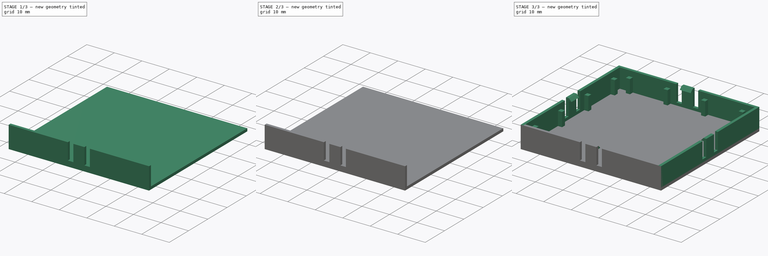
[diagram: build sequence overview — one tinted view per stage of 3, left to right]
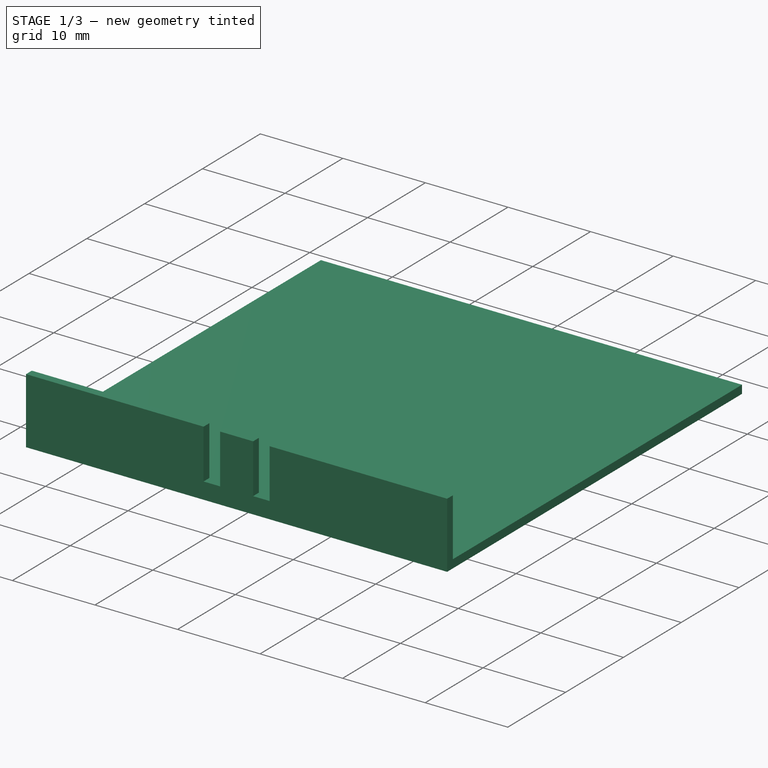
[diagram: stage 1 of 3 — iso view after this stage's code; geometry added in this stage tinted green]
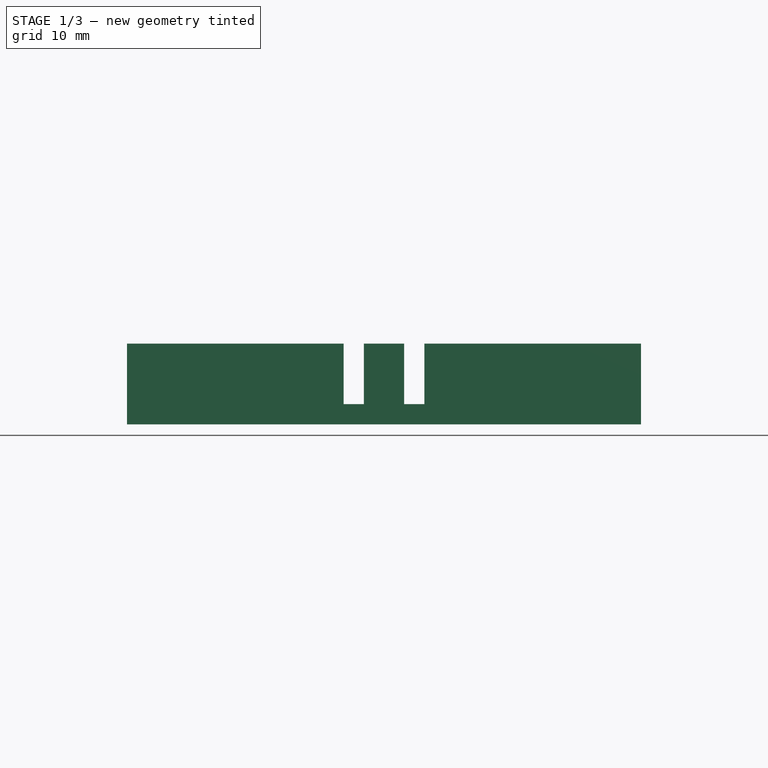
[diagram: stage 1 of 3 — front view after this stage's code; geometry added in this stage tinted green]
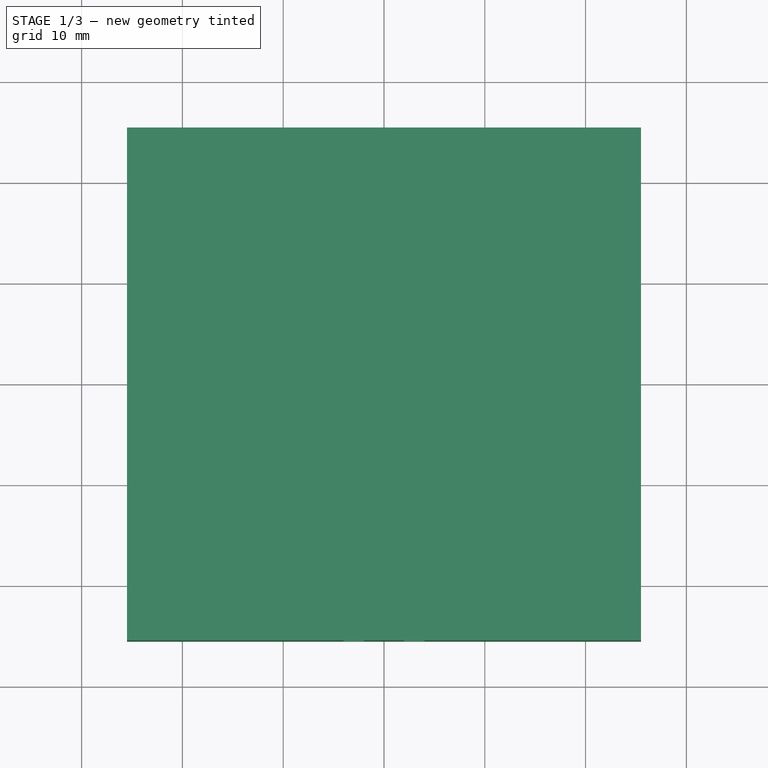
[diagram: stage 1 of 3 — top view after this stage's code; geometry added in this stage tinted green]
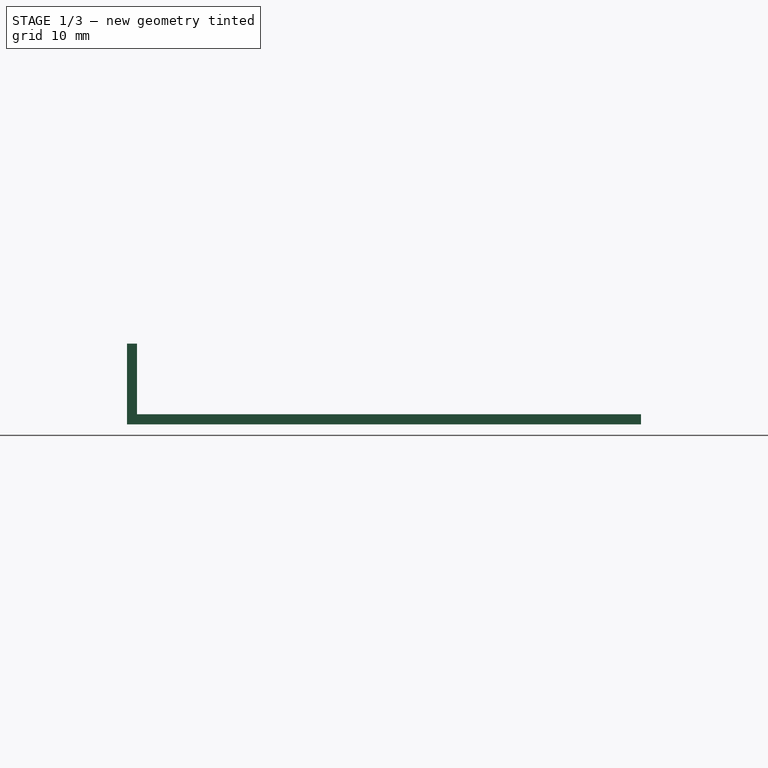
[diagram: stage 1 of 3 — right view after this stage's code; geometry added in this stage tinted green]
FCSTD DOCUMENT  (FreeCAD 0.20R29177 (Git))
Label: shield
License: All rights reserved
LicenseURL: http://en.wikipedia.org/wiki/All_rights_reserved
objects: Sketcher::SketchObject×4, PartDesign::Pad×4, PartDesign::LinearPattern×1, PartDesign::Body×1, Part::FeaturePython×1
note: 15 computed .brp shape members not serialized (recipe doc carries the construction recipe); baked Part::Feature solids carry a one-line shape summary decoded from their .brp

FEATURE [Sketcher::SketchObject] Sketch
  FullyConstrained = true
  MapMode = 5
  Support = -> [XY_Plane]
  sketch-geometry (4):
    g0: LineSegment StartX=-25.5 StartY=25.5 StartZ=0 EndX=25.5 EndY=25.5 EndZ=0
    g1: LineSegment StartX=25.5 StartY=25.5 StartZ=0 EndX=25.5 EndY=-25.5 EndZ=0
    g2: LineSegment StartX=25.5 StartY=-25.5 StartZ=0 EndX=-25.5 EndY=-25.5 EndZ=0
    g3: LineSegment StartX=-25.5 StartY=-25.5 StartZ=0 EndX=-25.5 EndY=25.5 EndZ=0
  constraints (10):
    c: Coincident(g0,g1)
    c: Coincident(g1,g2)
    c: Coincident(g2,g3)
    c: Coincident(g3,g0)
    c: Horizontal(g2)
    c: Vertical(g3)
    c: Symmetric(g0,g1,g-1)
    c: Symmetric(g0,g0,g-2)
    c: Distance(g0) = 51
    c: Distance(g1) = 51
FEATURE [PartDesign::Pad] Pad
  Direction = (0,0,1)
  Length = 1
  Length2 = 10
  Profile = -> Sketch
  ReferenceAxis = -> Sketch [N_Axis]
  Type = 0
FEATURE [Sketcher::SketchObject] Sketch001
  ExternalGeometry = -> [Pad]
  FullyConstrained = false
  MapMode = 5
  Placement = pos=(0,-25.5,0) rot=(1,0,0;1.5708rad)
  Support = -> [Pad]
  sketch-geometry (14):
    g0: LineSegment StartX=-33.7633 StartY=8 StartZ=0 EndX=31.5007 EndY=8 EndZ=0
    g1: LineSegment StartX=-33.6864 StartY=2 StartZ=0 EndX=32.2694 EndY=2 EndZ=0
    g2: LineSegment StartX=-25.5 StartY=0 StartZ=0 EndX=-25.5 EndY=8 EndZ=0
    g3: LineSegment StartX=-25.5 StartY=8 StartZ=0 EndX=-4 EndY=8 EndZ=0
    g4: LineSegment StartX=-4 StartY=8 StartZ=0 EndX=-4 EndY=2 EndZ=0
    g5: LineSegment StartX=-4 StartY=2 StartZ=0 EndX=-2 EndY=2 EndZ=0
    g6: LineSegment StartX=-2 StartY=2 StartZ=0 EndX=-2 EndY=8 EndZ=0
    g7: LineSegment StartX=-2 StartY=8 StartZ=0 EndX=2 EndY=8 EndZ=0
    g8: LineSegment StartX=2 StartY=8 StartZ=0 EndX=2 EndY=2 EndZ=0
    g9: LineSegment StartX=2 StartY=2 StartZ=0 EndX=4 EndY=2 EndZ=0
    g10: LineSegment StartX=4 StartY=2 StartZ=0 EndX=4 EndY=8 EndZ=0
    g11: LineSegment StartX=4 StartY=8 StartZ=0 EndX=25.5 EndY=8 EndZ=0
    g12: LineSegment StartX=25.5 StartY=8 StartZ=0 EndX=25.5 EndY=0 EndZ=0
    g13: LineSegment StartX=25.5 StartY=0 StartZ=0 EndX=-25.5 EndY=0 EndZ=0
  constraints (36):
    c: Horizontal(g0)
    c: Horizontal(g1)
    c: DistanceY(g-1,g0) = 8
    c: DistanceY(g-1,g1) = 2
    c: Coincident(g-3,g2)
    c: PointOnObject(g2,g0)
    c: Vertical(g2)
    c: Coincident(g2,g3)
    c: PointOnObject(g3,g0)
    c: Coincident(g3,g4)
    c: PointOnObject(g4,g1)
    c: Vertical(g4)
    c: Coincident(g4,g5)
    c: PointOnObject(g5,g1)
    c: Coincident(g5,g6)
    c: PointOnObject(g6,g0)
    c: Vertical(g6)
    c: Coincident(g6,g7)
    c: Coincident(g7,g8)
    c: PointOnObject(g8,g1)
    c: Vertical(g8)
    c: Coincident(g8,g9)
    c: Coincident(g9,g10)
    c: PointOnObject(g10,g0)
    c: Vertical(g10)
    c: Coincident(g10,g11)
    c: PointOnObject(g11,g0)
    c: Coincident(g11,g12)
    c: Coincident(g12,g-3)
    c: Coincident(g12,g13)
    c: Coincident(g13,g2)
    c: Vertical(g12)
    c: Symmetric(g6,g7,g-2)
    c: Symmetric(g9,g4,g-2)
    c: Distance(g7) = 4
    c: Distance(g3,g10) = 8
FEATURE [PartDesign::Pad] Pad001
  BaseFeature = -> Pad
  Direction = (0,-1,2e-16)
  Length = 1
  Length2 = 10
  Profile = -> Sketch001
  ReferenceAxis = -> Sketch001 [N_Axis]
  Reversed = true
  Type = 0
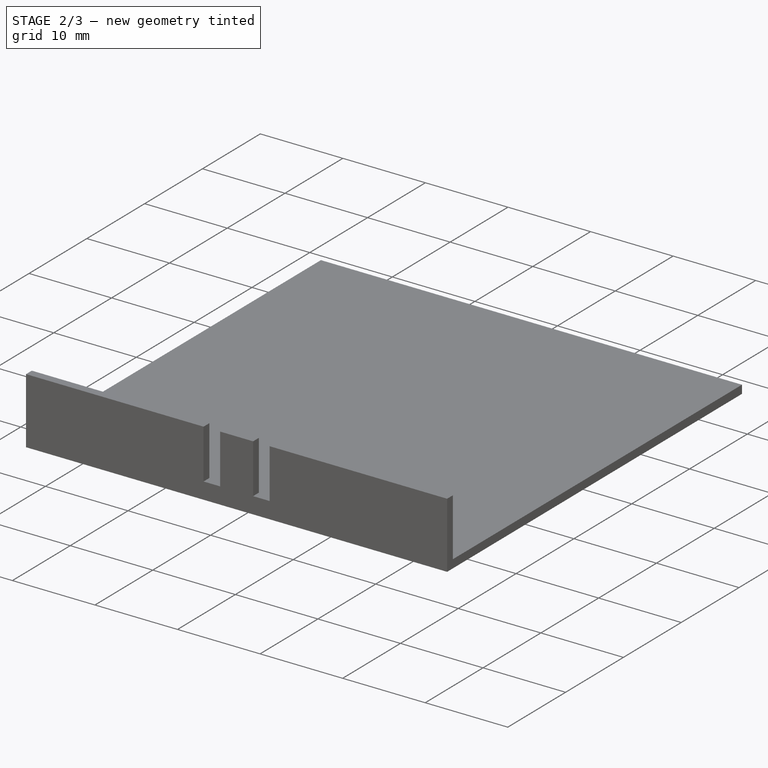
[diagram: stage 2 of 3 — iso view after this stage's code; geometry added in this stage tinted green]
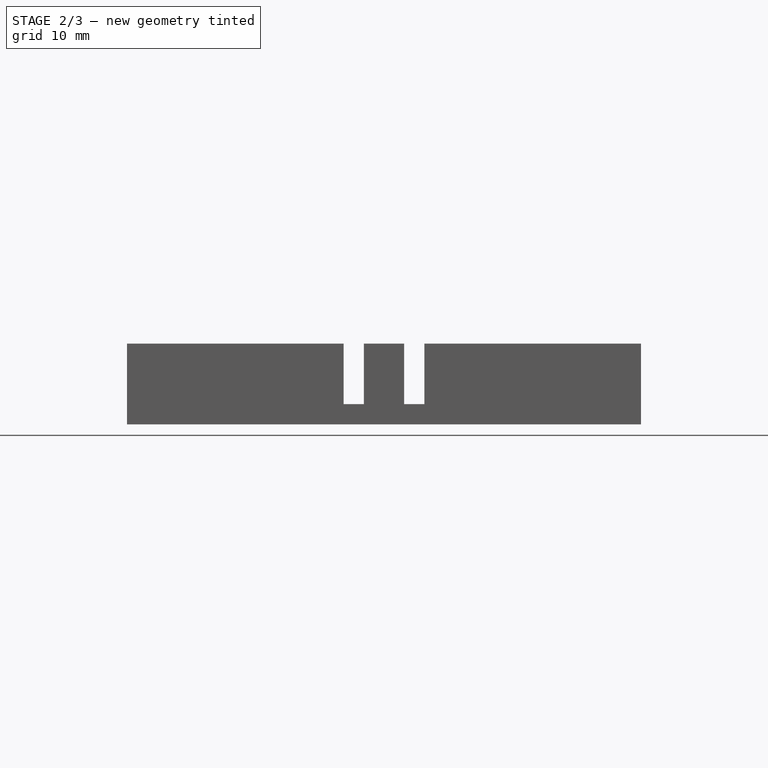
[diagram: stage 2 of 3 — front view after this stage's code; geometry added in this stage tinted green]
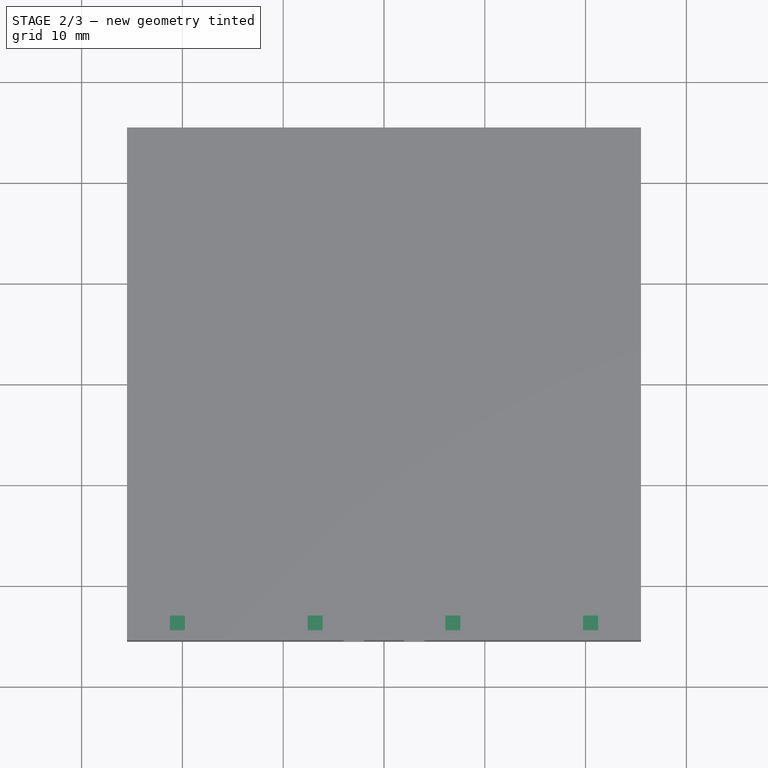
[diagram: stage 2 of 3 — top view after this stage's code; geometry added in this stage tinted green]
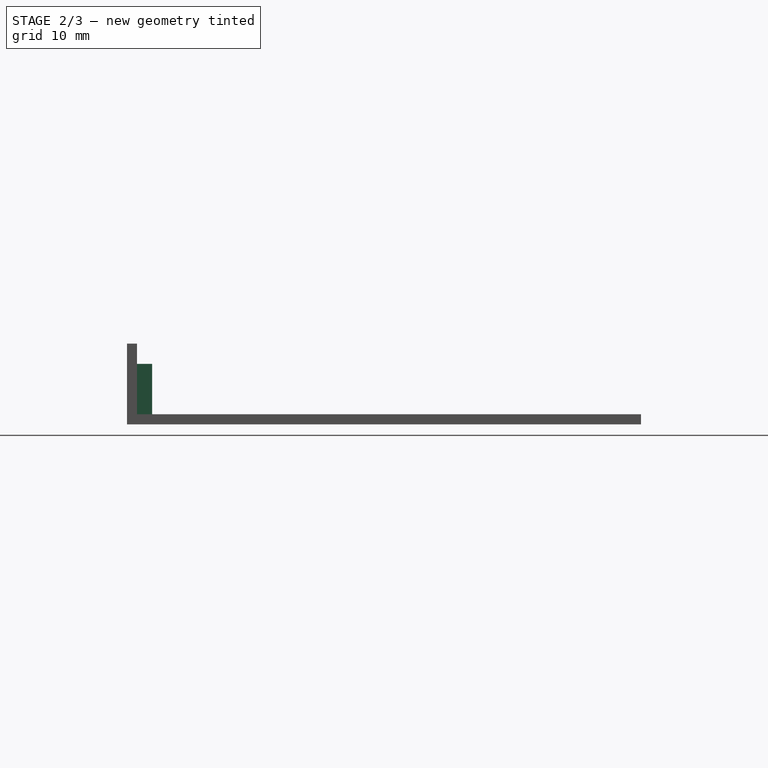
[diagram: stage 2 of 3 — right view after this stage's code; geometry added in this stage tinted green]
FEATURE [Sketcher::SketchObject] Sketch002
  ExternalGeometry = -> [Pad001]
  FullyConstrained = true
  MapMode = 5
  Placement = pos=(0,0,1) rot=(0,0,1;0rad)
  Support = -> [Pad001]
  sketch-geometry (4):
    g0: LineSegment StartX=-21.25 StartY=-23 StartZ=0 EndX=-19.75 EndY=-23 EndZ=0
    g1: LineSegment StartX=-19.75 StartY=-23 StartZ=0 EndX=-19.75 EndY=-24.5 EndZ=0
    g2: LineSegment StartX=-19.75 StartY=-24.5 StartZ=0 EndX=-21.25 EndY=-24.5 EndZ=0
    g3: LineSegment StartX=-21.25 StartY=-24.5 StartZ=0 EndX=-21.25 EndY=-23 EndZ=0
  constraints (12):
    c: Coincident(g0,g1)
    c: Coincident(g1,g2)
    c: Coincident(g2,g3)
    c: Coincident(g3,g0)
    c: Horizontal(g0)
    c: Horizontal(g2)
    c: Vertical(g1)
    c: Vertical(g3)
    c: PointOnObject(g1,g-3)
    c: Distance(g0) = 1.5
    c: Distance(g1) = 1.5
    c: Distance(g2,g-3) = 4.25
FEATURE [PartDesign::Pad] Pad002
  BaseFeature = -> Pad001
  Direction = (0,0,1)
  Length = 5
  Length2 = 10
  Profile = -> Sketch002
  ReferenceAxis = -> Sketch002 [N_Axis]
  Type = 0
FEATURE [PartDesign::LinearPattern] LinearPattern
  BaseFeature = -> Pad002
  Direction = -> X_Axis
  Length = 41
  Occurrences = 4
  Originals = -> [Pad002]
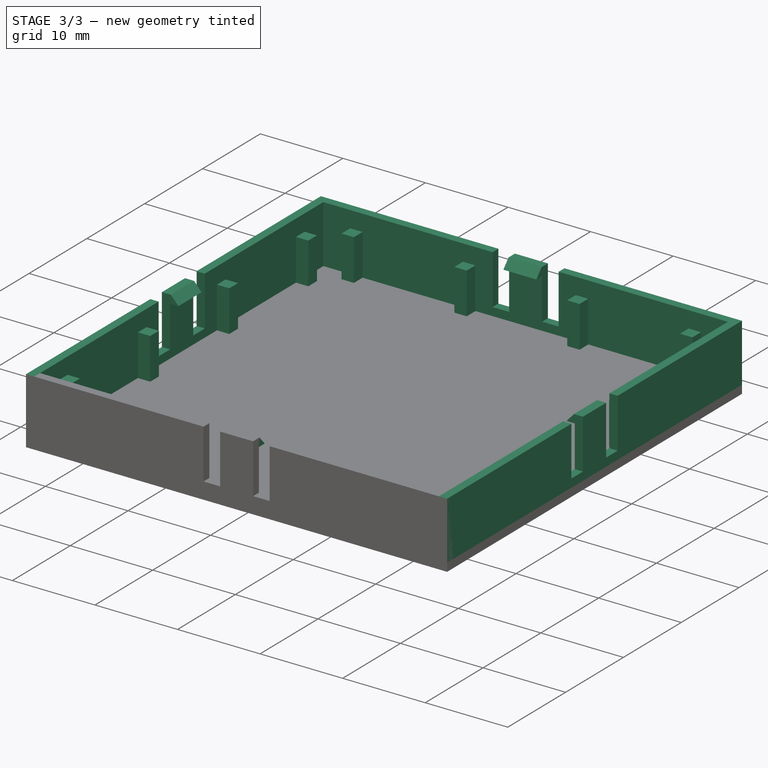
[diagram: stage 3 of 3 — iso view after this stage's code; geometry added in this stage tinted green]
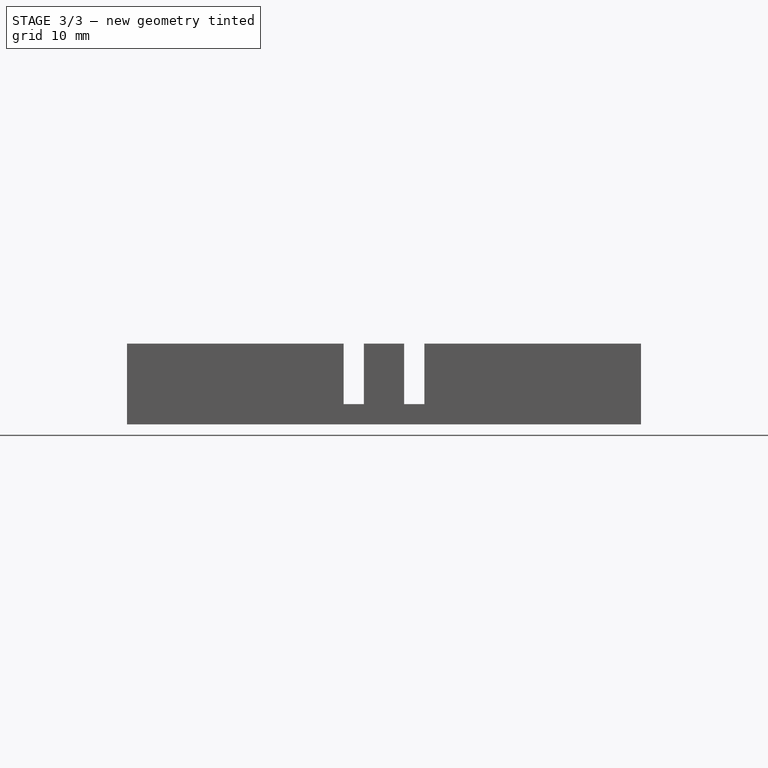
[diagram: stage 3 of 3 — front view after this stage's code; geometry added in this stage tinted green]
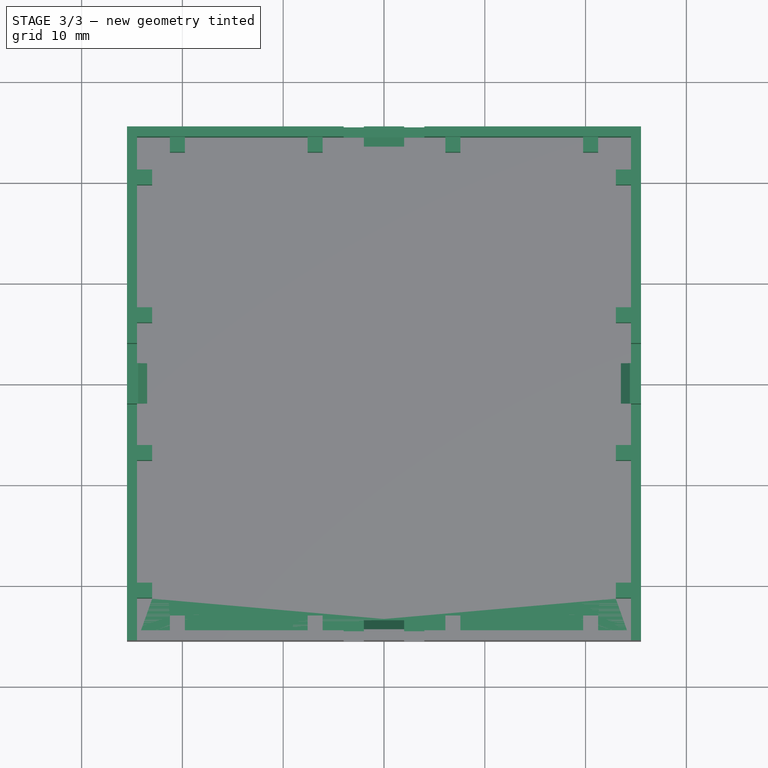
[diagram: stage 3 of 3 — top view after this stage's code; geometry added in this stage tinted green]
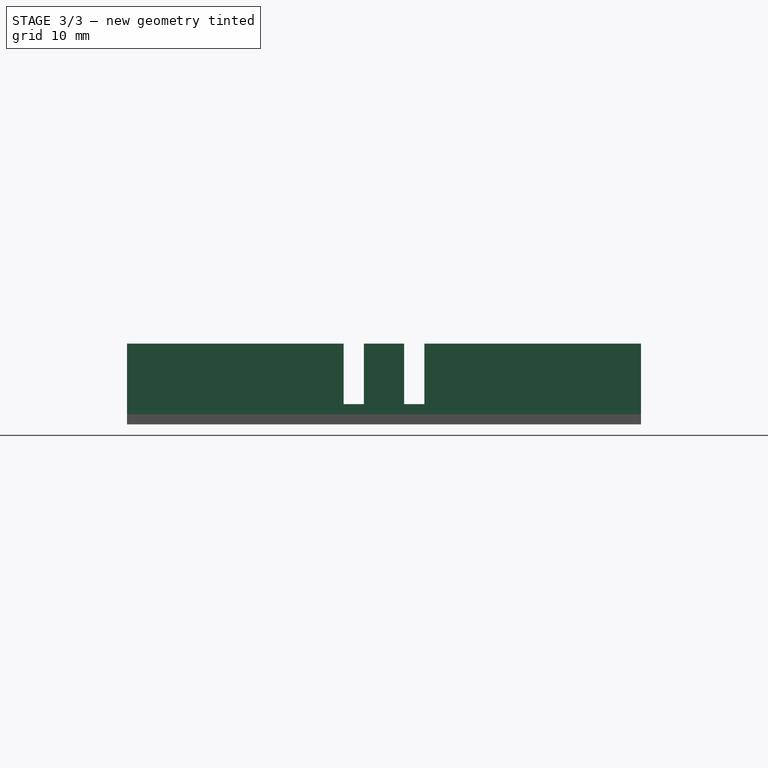
[diagram: stage 3 of 3 — right view after this stage's code; geometry added in this stage tinted green]
FEATURE [Sketcher::SketchObject] Sketch003
  ExternalGeometry = -> [LinearPattern]
  FullyConstrained = false
  MapMode = 5
  Placement = pos=(-2,0,0) rot=(0.57735,-0.57735,-0.57735;2.0944rad)
  Support = -> [LinearPattern]
  sketch-geometry (4):
    g0: LineSegment StartX=24.5 StartY=7.99505 StartZ=0 EndX=24.4 EndY=7.99505 EndZ=0
    g1: LineSegment StartX=24.4 StartY=7.99505 StartZ=0 EndX=23.5 EndY=7 EndZ=0
    g2: LineSegment StartX=23.5 StartY=7 StartZ=0 EndX=24.5 EndY=7 EndZ=0
    g3: LineSegment StartX=24.5 StartY=7 StartZ=0 EndX=24.5 EndY=7.99505 EndZ=0
  constraints (11):
    c: PointOnObject(g0,g-3)
    c: Horizontal(g0)
    c: Coincident(g0,g1)
    c: Horizontal(g2)
    c: Coincident(g2,g3)
    c: Vertical(g3)
    c: Coincident(g3,g0)
    c: Distance(g1,g-4) = 1
    c: Coincident(g2,g1)
    c: Distance(g1,g3) = 1
    c: Distance(g0) = 0.1
FEATURE [PartDesign::Pad] Pad003
  BaseFeature = -> LinearPattern
  Direction = (-1,0,0)
  Length = 4
  Length2 = 10
  Profile = -> Sketch003
  ReferenceAxis = -> Sketch003 [N_Axis]
  Reversed = true
  Type = 0
FEATURE [PartDesign::Body] Body
  Group = -> [Sketch,Pad,Sketch001,Pad001,Sketch002,Pad002,LinearPattern,Sketch003,Pad003]
  Origin = -> Origin
  Tip = -> Pad003
FEATURE [Part::FeaturePython] Array  # Draft array (typed FeaturePython)
  Angle = 360
  ArrayType = 1
  Axis = (0,0,1)
  Base = -> Pad003
  Center = (0,0,0)
  Fuse = false
  IntervalAxis = (0,0,0)
  IntervalX = (50,0,0)
  IntervalY = (0,50,0)
  IntervalZ = (0,0,50)
  NumberCircles = 3
  NumberPolar = 4
  NumberX = 2
  NumberY = 2
  NumberZ = 1
  RadialDistance = 50
  Symmetry = 1
  TangentialDistance = 25
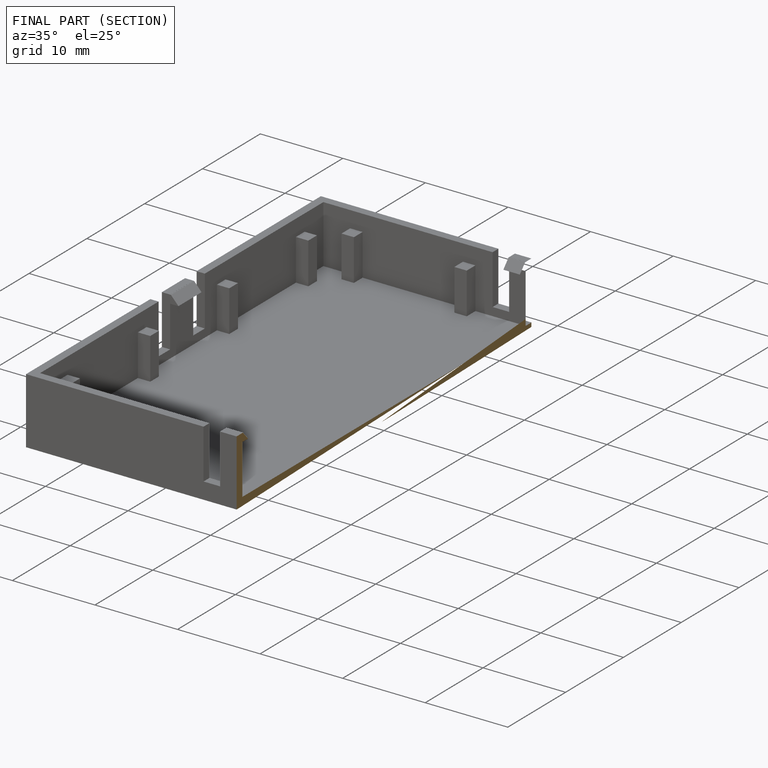
[diagram: finished part — half-section view (interior)]
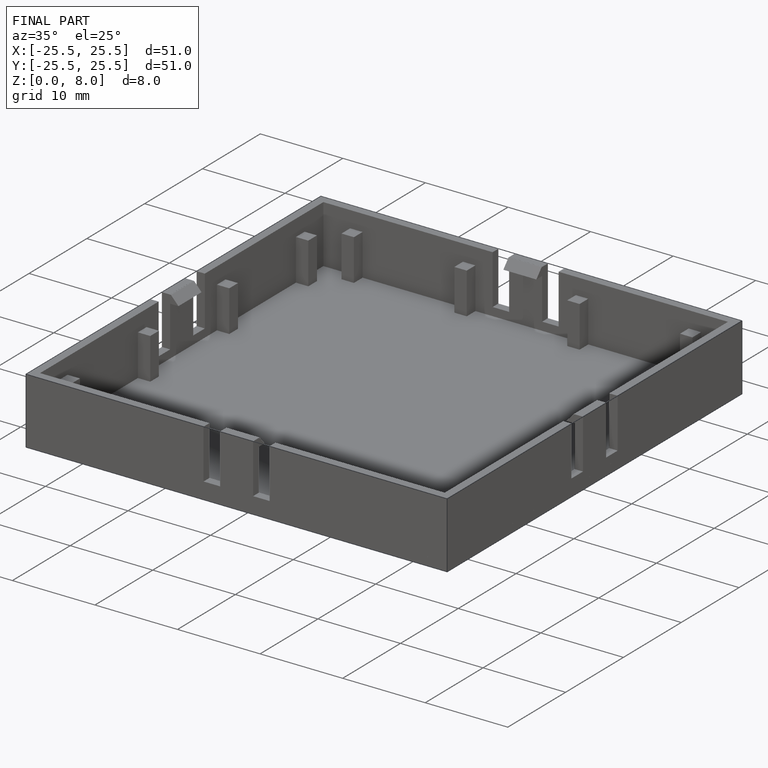
[diagram: finished part — iso view with bounding-box wireframe]
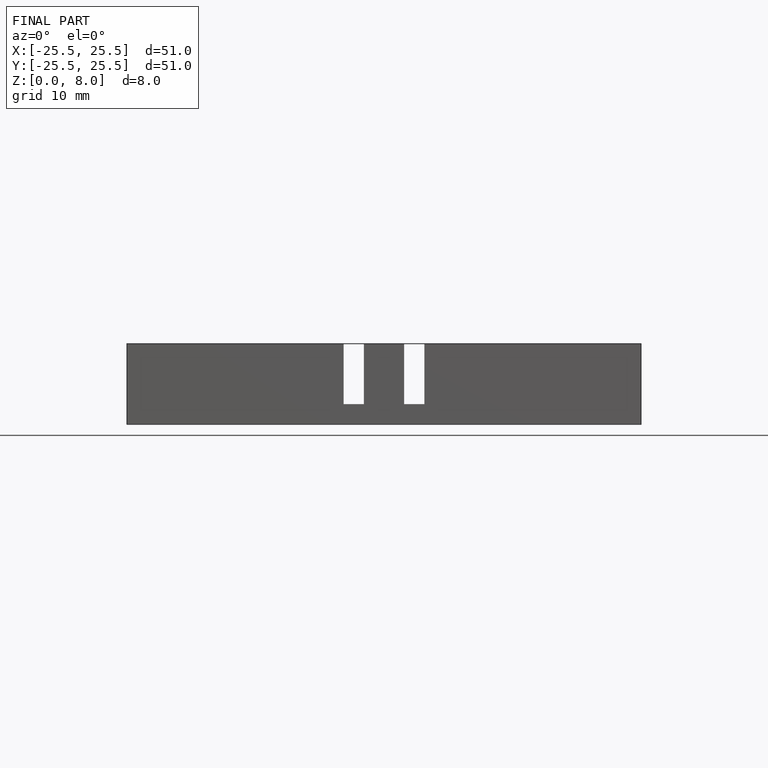
[diagram: finished part — front view with bounding-box wireframe]
